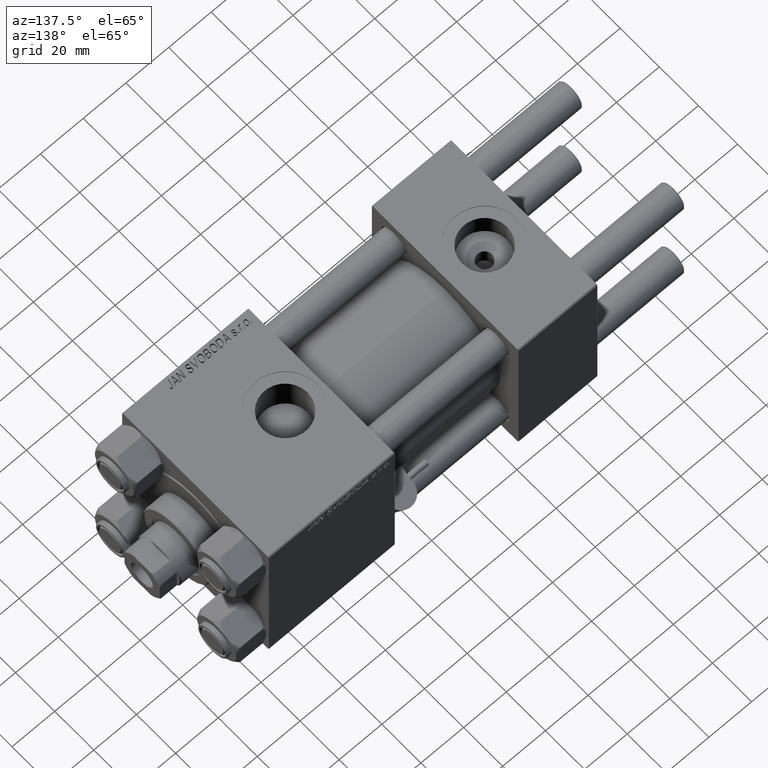
[diagram: clean part render]
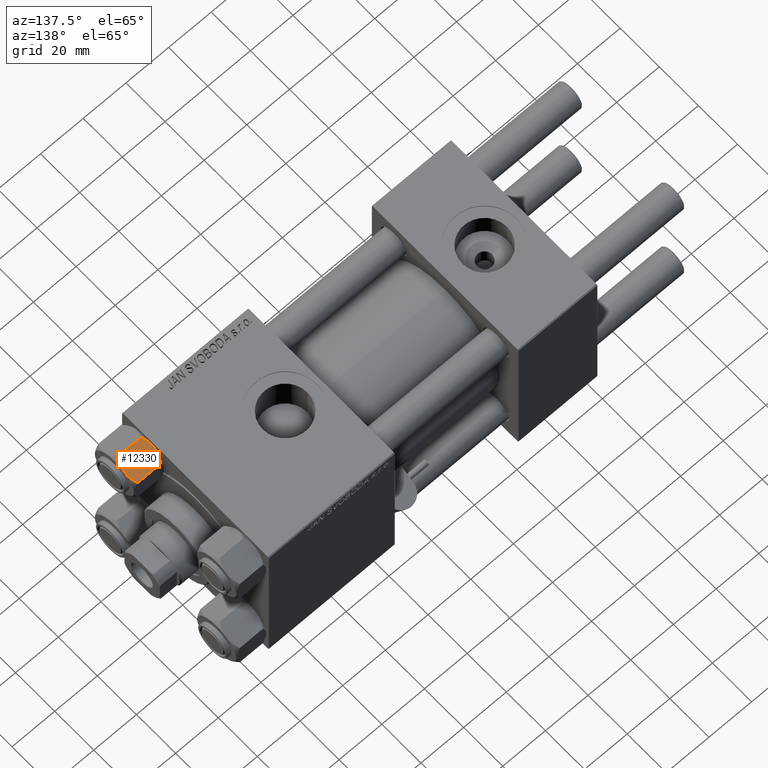
[diagram: same view with one face highlighted and labeled with its STEP entity id]
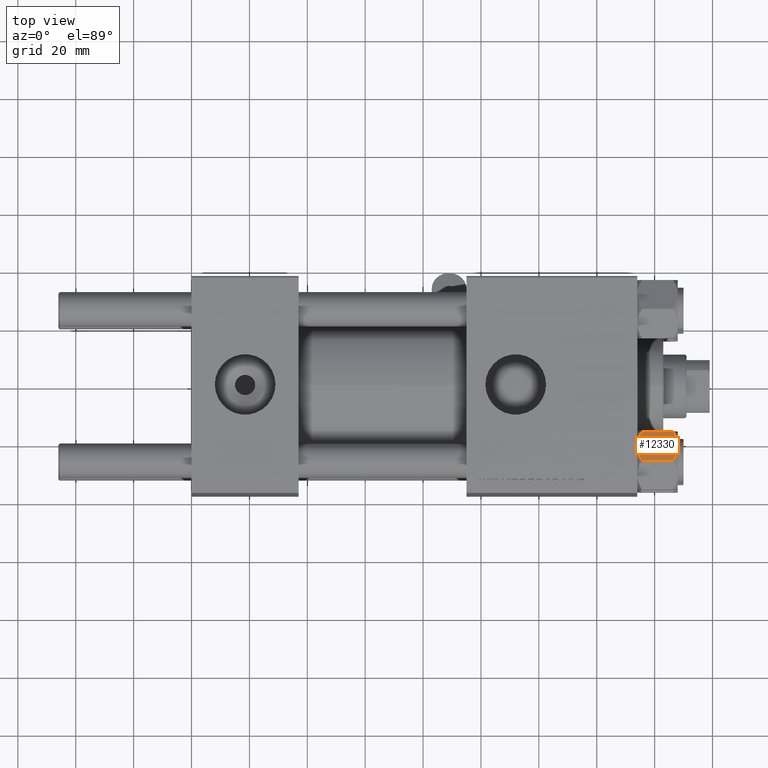
[diagram: same view with one face highlighted and labeled with its STEP entity id]
A machine part, auxiliary view. The second image highlights one B-rep face of the part: STEP entity #12330.
A second angle (top view) of the same face is appended — the face is thin or edge-on in the first view.
In plain terms, the highlighted planar face has unit normal (-0, -0.5, -0.866).
Its self-contained STEP definition (entity closure, byte-faithful):
#166 = EDGE_LOOP ( 'NONE', ( #32931, #16891, #8509, #46750, #231, #43463 ) ) ;
#231 = ORIENTED_EDGE ( 'NONE', *, *, #26681, .F. ) ;
#635 = CARTESIAN_POINT ( 'NONE',  ( 8.714999999999994529, 5.031607595987588333, 0.000000000000000000 ) ) ;
#1305 = VERTEX_POINT ( 'NONE', #26155 ) ;
#2867 = EDGE_CURVE ( 'NONE', #45463, #5921, #20099, .T. ) ;
#3152 = CARTESIAN_POINT ( 'NONE',  ( 5.809999999999995168, 10.06321519197518377, -1.556784808024826106 ) ) ;
#5771 = EDGE_CURVE ( 'NONE', #45463, #1305, #7836, .T. ) ;
#5921 = VERTEX_POINT ( 'NONE', #3152 ) ;
#7836 = B_SPLINE_CURVE_WITH_KNOTS ( 'NONE', 3,
 ( #22778, #7903, #15338, #38439, #11241, #30752, #18924, #45898 ),
 .UNSPECIFIED., .F., .F.,
 ( 4, 2, 2, 4 ),
 ( 2.544312114902182352E-07, 0.003011550106433543827, 0.004517197944044569653, 0.006022845781655595046 ),
 .UNSPECIFIED. ) ;
#7903 = CARTESIAN_POINT ( 'NONE',  ( 6.265545725125281074, 9.274186850887387479, -12.89876091710045891 ) ) ;
#8509 = ORIENTED_EDGE ( 'NONE', *, *, #49020, .F. ) ;
#9254 = CARTESIAN_POINT ( 'NONE',  ( 11.61999999999999922, 7.247075248837498561E-15, -1.556784808024820999 ) ) ;
#9380 = B_SPLINE_CURVE_WITH_KNOTS ( 'NONE', 3,
 ( #26123, #21761, #45374, #49485, #48729, #44881, #37922, #14317 ),
 .UNSPECIFIED., .F., .F.,
 ( 4, 2, 2, 4 ),
 ( 2.544312114899127210E-07, 0.003011550106433536454, 0.004517197944044559245, 0.006022845781655580301 ),
 .UNSPECIFIED. ) ;
#10882 = DIRECTION ( 'NONE',  ( -0.000000000000000000, -0.000000000000000000, 1.000000000000000000 ) ) ;
#11241 = CARTESIAN_POINT ( 'NONE',  ( 7.700834831386342394, 6.788193195293096949, -13.80960203119265017 ) ) ;
#12330 = ADVANCED_FACE ( 'NONE', ( #33339 ), #24869, .F. ) ;
#12444 = CARTESIAN_POINT ( 'NONE',  ( 7.713000053756304375, 6.767122412062953174, -0.1545239700039927888 ) ) ;
#14317 = CARTESIAN_POINT ( 'NONE',  ( 8.714999999999994529, 5.031607595987588333, 0.000000000000000000 ) ) ;
#14821 = B_SPLINE_CURVE_WITH_KNOTS ( 'NONE', 3,
 ( #41217, #17859, #34017, #21705, #37866, #37369 ),
 .UNSPECIFIED., .F., .F.,
 ( 4, 2, 4 ),
 ( 0.006022845781655595046, 0.009013049135303638493, 0.01200325248895168194 ),
 .UNSPECIFIED. ) ;
#15338 = CARTESIAN_POINT ( 'NONE',  ( 6.731401448974984270, 8.467301068182921497, -13.28585617404752384 ) ) ;
#16290 = CARTESIAN_POINT ( 'NONE',  ( 8.209704053696574633, 5.906805847843728863, -5.031375706690544014E-15 ) ) ;
#16707 = VERTEX_POINT ( 'NONE', #30927 ) ;
#16891 = ORIENTED_EDGE ( 'NONE', *, *, #2867, .T. ) ;
#17558 = VECTOR ( 'NONE', #10882, 1000.000000000000000 ) ;
#17859 = CARTESIAN_POINT ( 'NONE',  ( 9.220295946303428636, 4.156409344131457573, -13.99999999999999822 ) ) ;
#18924 = CARTESIAN_POINT ( 'NONE',  ( 8.460569896449612770, 5.472293462311864864, -13.99999999999998934 ) ) ;
#20099 = LINE ( 'NONE', #39609, #43766 ) ;
#20314 = AXIS2_PLACEMENT_3D ( 'NONE', #48993, #36430, #28739 ) ;
#21705 = CARTESIAN_POINT ( 'NONE',  ( 10.69662495661650148, 1.599332489581338113, -13.28854452935654074 ) ) ;
#21761 = CARTESIAN_POINT ( 'NONE',  ( 11.16445427487471775, 0.7890283410878045078, -1.101239082899540200 ) ) ;
#22778 = CARTESIAN_POINT ( 'NONE',  ( 5.809999999999994280, 10.06321519197518377, -12.44321519197517389 ) ) ;
#23473 = CARTESIAN_POINT ( 'NONE',  ( 6.265018354709772197, 9.275100283241449972, -1.101766453314962924 ) ) ;
#24569 = EDGE_CURVE ( 'NONE', #1305, #16707, #14821, .T. ) ;
#24869 = PLANE ( 'NONE',  #20314 ) ;
#26123 = CARTESIAN_POINT ( 'NONE',  ( 11.61999999999999922, 7.247075248837498561E-15, -1.556784808024820999 ) ) ;
#26155 = CARTESIAN_POINT ( 'NONE',  ( 8.714999999999994529, 5.031607595987588333, -14.00000000000000000 ) ) ;
#26681 = EDGE_CURVE ( 'NONE', #16707, #30475, #49900, .T. ) ;
#28093 = CARTESIAN_POINT ( 'NONE',  ( 6.733375043383494685, 8.463882702393844326, -0.7114554706434600417 ) ) ;
#28739 = DIRECTION ( 'NONE',  ( 0.5000000000000002220, -0.8660254037844384856, 0.000000000000000000 ) ) ;
#30475 = VERTEX_POINT ( 'NONE', #9254 ) ;
#30752 = CARTESIAN_POINT ( 'NONE',  ( 8.202333004087895674, 5.919572880271055659, -13.96005881939308502 ) ) ;
#30927 = CARTESIAN_POINT ( 'NONE',  ( 11.61999999999999922, 7.035126978385350964E-15, -12.44321519197517922 ) ) ;
#32931 = ORIENTED_EDGE ( 'NONE', *, *, #5771, .F. ) ;
#33339 = FACE_OUTER_BOUND ( 'NONE', #166, .T. ) ;
#34017 = CARTESIAN_POINT ( 'NONE',  ( 9.716999946243698005, 3.296092779912230153, -13.84547602999601068 ) ) ;
#36430 = DIRECTION ( 'NONE',  ( -0.8660254037844385966, -0.5000000000000003331, 0.000000000000000000 ) ) ;
#37369 = CARTESIAN_POINT ( 'NONE',  ( 11.61999999999999922, 7.035126978385350964E-15, -12.44321519197517922 ) ) ;
#37831 = CARTESIAN_POINT ( 'NONE',  ( 11.61999999999999922, 7.017202701192663836E-15, -14.00000000000000000 ) ) ;
#37866 = CARTESIAN_POINT ( 'NONE',  ( 11.16498164529021864, 0.7881149087337363524, -12.89823354668503974 ) ) ;
#37922 = CARTESIAN_POINT ( 'NONE',  ( 8.969430103550385169, 4.590921729663316242, -5.293955920339376330E-15 ) ) ;
#38439 = CARTESIAN_POINT ( 'NONE',  ( 7.455303369716803630, 7.213466161761386886, -13.69973261901325223 ) ) ;
#38621 = CARTESIAN_POINT ( 'NONE',  ( 5.809999999999995168, 10.06321519197518377, -1.556784808024826106 ) ) ;
#38672 = CARTESIAN_POINT ( 'NONE',  ( 8.714999999999994529, 5.031607595987588333, 0.000000000000000000 ) ) ;
#39609 = CARTESIAN_POINT ( 'NONE',  ( 5.809999999999995168, 10.06321519197518377, -14.00000000000000000 ) ) ;
#41217 = CARTESIAN_POINT ( 'NONE',  ( 8.714999999999994529, 5.031607595987588333, -14.00000000000000000 ) ) ;
#41247 = VERTEX_POINT ( 'NONE', #38672 ) ;
#43463 = ORIENTED_EDGE ( 'NONE', *, *, #24569, .F. ) ;
#43766 = VECTOR ( 'NONE', #47330, 1000.000000000000000 ) ;
#44580 = EDGE_CURVE ( 'NONE', #30475, #41247, #9380, .T. ) ;
#44881 = CARTESIAN_POINT ( 'NONE',  ( 9.227666995912100489, 4.143642311704127223, -0.03994118060691630862 ) ) ;
#45374 = CARTESIAN_POINT ( 'NONE',  ( 10.69859855102500923, 1.595914123792269601, -0.7141438259524722776 ) ) ;
#45463 = VERTEX_POINT ( 'NONE', #47160 ) ;
#45898 = CARTESIAN_POINT ( 'NONE',  ( 8.714999999999994529, 5.031607595987588333, -14.00000000000000000 ) ) ;
#46750 = ORIENTED_EDGE ( 'NONE', *, *, #44580, .F. ) ;
#47032 = B_SPLINE_CURVE_WITH_KNOTS ( 'NONE', 3,
 ( #635, #16290, #12444, #28093, #23473, #38621 ),
 .UNSPECIFIED., .F., .F.,
 ( 4, 2, 4 ),
 ( 0.006022845781655580301, 0.009013049135303631554, 0.01200325248895168020 ),
 .UNSPECIFIED. ) ;
#47160 = CARTESIAN_POINT ( 'NONE',  ( 5.809999999999994280, 10.06321519197518377, -12.44321519197517389 ) ) ;
#47330 = DIRECTION ( 'NONE',  ( -0.000000000000000000, -0.000000000000000000, 1.000000000000000000 ) ) ;
#48729 = CARTESIAN_POINT ( 'NONE',  ( 9.729165168613654657, 3.275021996682086378, -0.1903979688073500487 ) ) ;
#48993 = CARTESIAN_POINT ( 'NONE',  ( 5.809999999999995168, 10.06321519197518377, -14.00000000000000000 ) ) ;
#49020 = EDGE_CURVE ( 'NONE', #41247, #5921, #47032, .T. ) ;
#49485 = CARTESIAN_POINT ( 'NONE',  ( 9.974696630283194310, 2.849749030213796885, -0.3002673809867452137 ) ) ;
#49900 = LINE ( 'NONE', #37831, #17558 ) ;